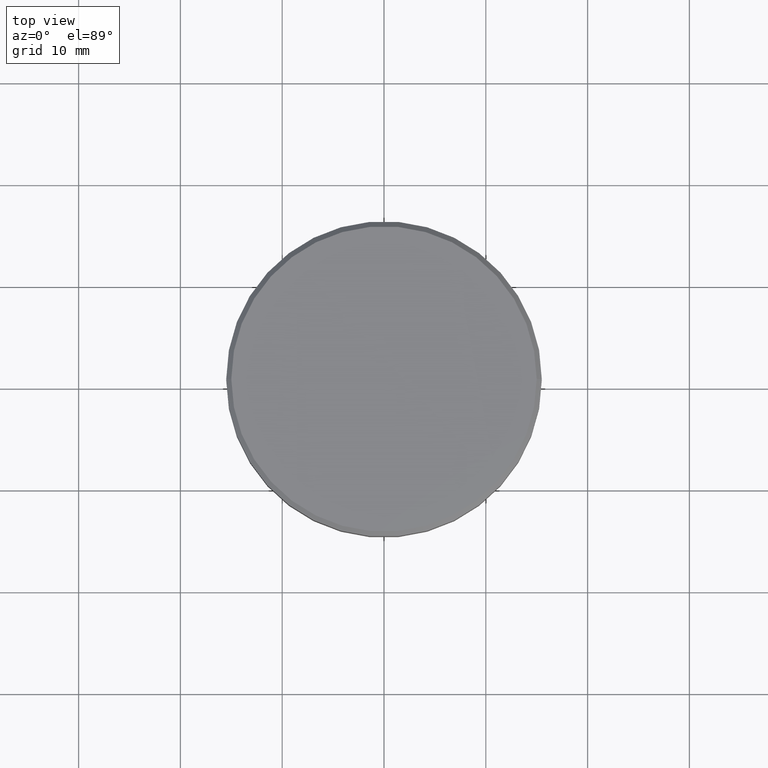
[diagram: clean part render]
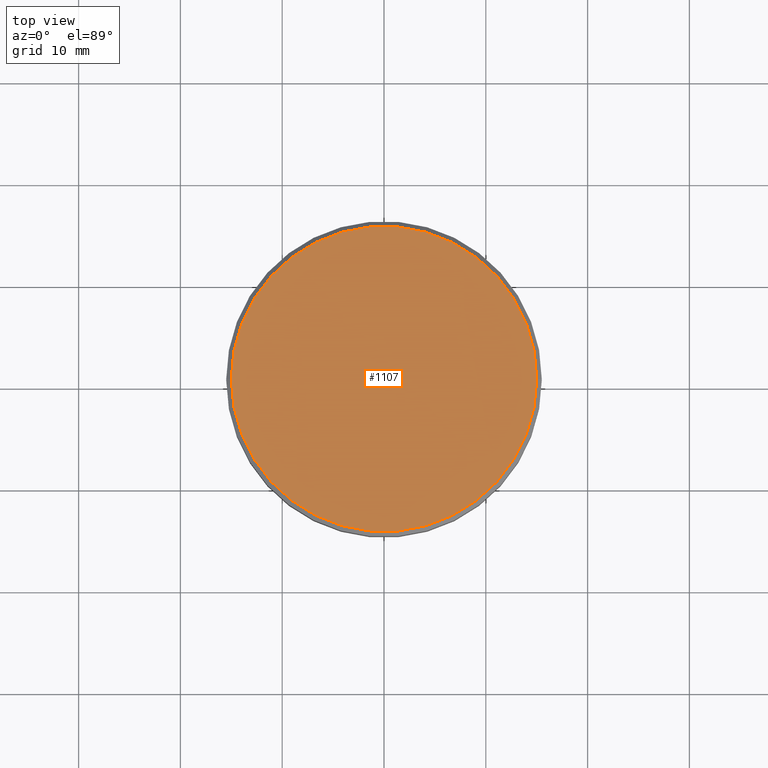
[diagram: same view with one face highlighted and labeled with its STEP entity id]
A machine part, top view. The second image highlights one B-rep face of the part: STEP entity #1107.
In plain terms, the highlighted planar face has unit normal (0, -0, 1).
Its self-contained STEP definition (entity closure, byte-faithful):
#36 = CARTESIAN_POINT ( 'NONE',  ( 0.000000000000000000, 0.000000000000000000, 0.000000000000000000 ) ) ;
#101 = DIRECTION ( 'NONE',  ( 1.000000000000000000, 0.000000000000000000, 0.000000000000000000 ) ) ;
#115 = EDGE_CURVE ( 'NONE', #161, #469, #1055, .T. ) ;
#133 = DIRECTION ( 'NONE',  ( 0.000000000000000000, -0.000000000000000000, 1.000000000000000000 ) ) ;
#161 = VERTEX_POINT ( 'NONE', #495 ) ;
#359 = ORIENTED_EDGE ( 'NONE', *, *, #580, .T. ) ;
#371 = AXIS2_PLACEMENT_3D ( 'NONE', #843, #392, #384 ) ;
#384 = DIRECTION ( 'NONE',  ( 1.000000000000000000, 0.000000000000000000, 0.000000000000000000 ) ) ;
#392 = DIRECTION ( 'NONE',  ( -0.000000000000000000, -0.000000000000000000, 1.000000000000000000 ) ) ;
#421 = AXIS2_PLACEMENT_3D ( 'NONE', #36, #1129, #101 ) ;
#440 = AXIS2_PLACEMENT_3D ( 'NONE', #599, #133, #764 ) ;
#469 = VERTEX_POINT ( 'NONE', #1028 ) ;
#495 = CARTESIAN_POINT ( 'NONE',  ( 15.00000000000001421, 1.867586368699714559E-15, 0.000000000000000000 ) ) ;
#499 = FACE_OUTER_BOUND ( 'NONE', #1144, .T. ) ;
#580 = EDGE_CURVE ( 'NONE', #469, #161, #1173, .T. ) ;
#599 = CARTESIAN_POINT ( 'NONE',  ( 0.000000000000000000, 0.000000000000000000, 0.000000000000000000 ) ) ;
#764 = DIRECTION ( 'NONE',  ( 1.000000000000000000, 0.000000000000000000, 0.000000000000000000 ) ) ;
#843 = CARTESIAN_POINT ( 'NONE',  ( 0.000000000000000000, 0.000000000000000000, 0.000000000000000000 ) ) ;
#951 = PLANE ( 'NONE',  #440 ) ;
#972 = ORIENTED_EDGE ( 'NONE', *, *, #115, .T. ) ;
#1028 = CARTESIAN_POINT ( 'NONE',  ( -15.00000000000001421, 0.000000000000000000, 0.000000000000000000 ) ) ;
#1055 = CIRCLE ( 'NONE', #421, 15.00000000000001421 ) ;
#1107 = ADVANCED_FACE ( 'NONE', ( #499 ), #951, .T. ) ;
#1129 = DIRECTION ( 'NONE',  ( -0.000000000000000000, -0.000000000000000000, 1.000000000000000000 ) ) ;
#1144 = EDGE_LOOP ( 'NONE', ( #359, #972 ) ) ;
#1173 = CIRCLE ( 'NONE', #371, 15.00000000000001421 ) ;